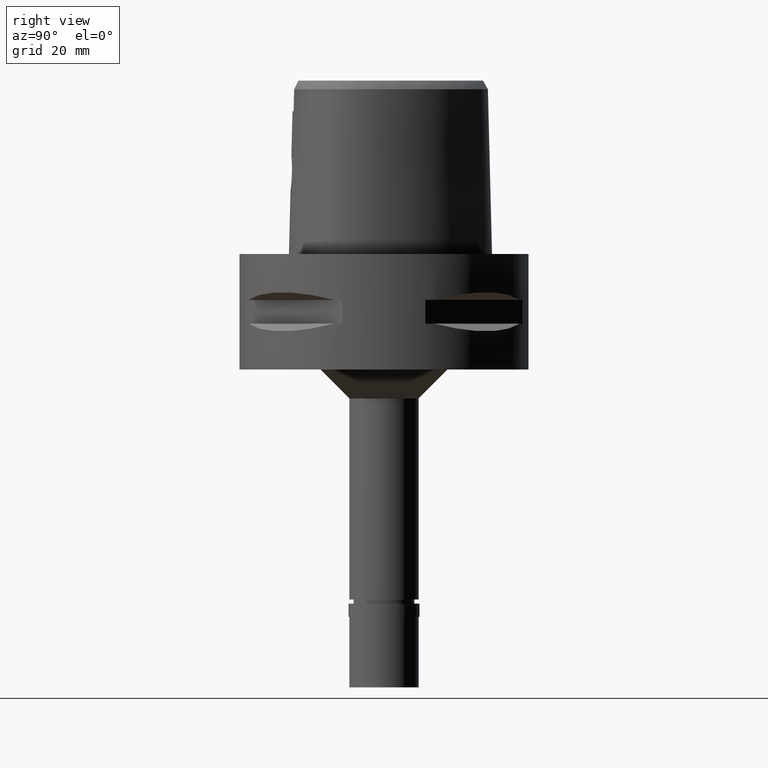
[diagram: clean part render]
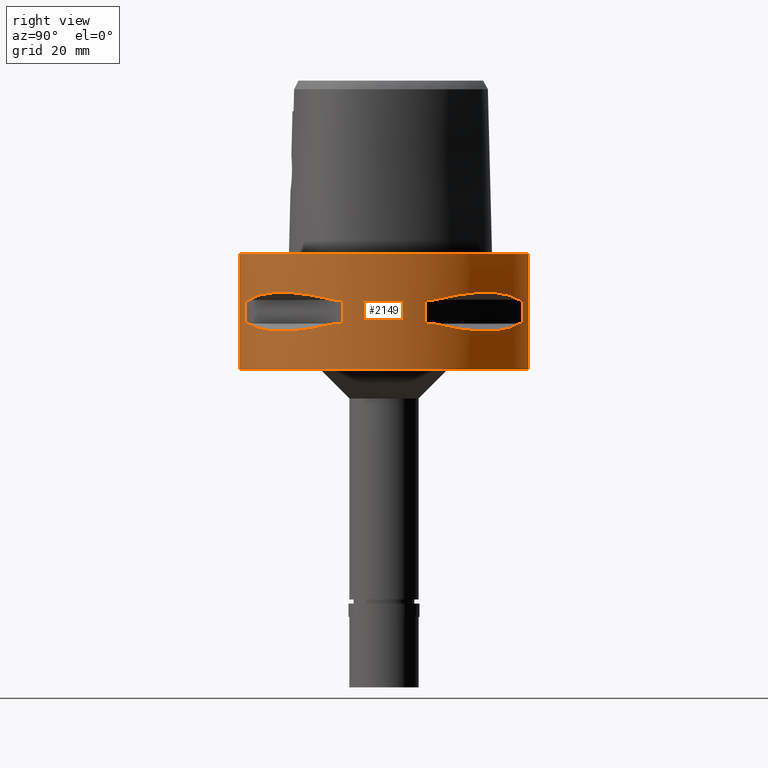
[diagram: same view with one face highlighted and labeled with its STEP entity id]
A machine part, right view. The second image highlights one B-rep face of the part: STEP entity #2149.
In plain terms, the highlighted cylindrical surface (partial cylindrical patch) has radius 25 mm, axis along (0, 0, -1).
Its self-contained STEP definition (entity closure, byte-faithful):
#27 = LINE ( 'NONE', #1923, #787 ) ;
#31 = CARTESIAN_POINT ( 'NONE',  ( 21.82791133048241505, -12.20403021318713144, -7.162775698611254960 ) ) ;
#37 = CARTESIAN_POINT ( 'NONE',  ( 20.88268233906169868, 13.74471461761818247, -6.919682044202299487 ) ) ;
#50 = DIRECTION ( 'NONE',  ( 0.0000000000000000000, 0.0000000000000000000, -1.000000000000000000 ) ) ;
#167 = CIRCLE ( 'NONE', #415, 25.00000000000001066 ) ;
#174 = FACE_OUTER_BOUND ( 'NONE', #231, .T. ) ;
#180 = CARTESIAN_POINT ( 'NONE',  ( 0.0000000000000000000, -25.00000000000000000, 0.0000000000000000000 ) ) ;
#208 = VERTEX_POINT ( 'NONE', #883 ) ;
#221 = EDGE_CURVE ( 'NONE', #4669, #3877, #1612, .T. ) ;
#231 = EDGE_LOOP ( 'NONE', ( #3900, #3501, #3631, #2078 ) ) ;
#247 = EDGE_CURVE ( 'NONE', #4529, #262, #4227, .T. ) ;
#262 = VERTEX_POINT ( 'NONE', #857 ) ;
#272 = CARTESIAN_POINT ( 'NONE',  ( 16.07509500019389392, 19.18226349638523942, -13.33749867751852136 ) ) ;
#275 = DIRECTION ( 'NONE',  ( 0.0000000000000000000, 0.0000000000000000000, 1.000000000000000000 ) ) ;
#289 = CARTESIAN_POINT ( 'NONE',  ( 13.24197703503762646, 21.20561591939662804, -6.993086720737648143 ) ) ;
#345 = DIRECTION ( 'NONE',  ( 0.0000000000000000000, 0.0000000000000000000, 1.000000000000000000 ) ) ;
#363 = AXIS2_PLACEMENT_3D ( 'NONE', #2672, #4162, #1536 ) ;
#380 = CARTESIAN_POINT ( 'NONE',  ( 21.41803043592396705, -12.89853354822411902, -7.046579073858217690 ) ) ;
#396 = CARTESIAN_POINT ( 'NONE',  ( 16.43106916202611956, -18.92421359264642078, -13.37747608848010117 ) ) ;
#400 = CARTESIAN_POINT ( 'NONE',  ( 18.92421359264222502, -16.43106916203382539, -6.622523911517402162 ) ) ;
#415 = AXIS2_PLACEMENT_3D ( 'NONE', #2678, #4170, #1198 ) ;
#425 = CARTESIAN_POINT ( 'NONE',  ( 10.78455809743770466, -22.58788056562618962, -12.56798337782440989 ) ) ;
#451 = CARTESIAN_POINT ( 'NONE',  ( 21.01958685664148874, -13.53433973752551367, -6.949676194097938797 ) ) ;
#518 = DIRECTION ( 'NONE',  ( 0.0000000000000000000, 0.0000000000000000000, -1.000000000000000000 ) ) ;
#594 = EDGE_CURVE ( 'NONE', #1515, #3992, #4066, .T. ) ;
#647 = VERTEX_POINT ( 'NONE', #2501 ) ;
#654 = CARTESIAN_POINT ( 'NONE',  ( 20.77616787493488815, 13.90573822668292259, -6.897428778966740559 ) ) ;
#662 = CARTESIAN_POINT ( 'NONE',  ( 22.58788056562460866, 10.78455809744206384, -12.56798337782554498 ) ) ;
#708 = CARTESIAN_POINT ( 'NONE',  ( 21.01958685664117610, 13.53433973752414055, -13.05032380590030350 ) ) ;
#733 = CARTESIAN_POINT ( 'NONE',  ( 12.89853354821194920, -21.41803043592740607, -12.95342092613715934 ) ) ;
#759 = CARTESIAN_POINT ( 'NONE',  ( 8.646484890751999330, -23.45715880140000209, -7.949999999998999201 ) ) ;
#766 = CARTESIAN_POINT ( 'NONE',  ( 20.92801700160346456, 13.67544437571269711, -6.929453703558801969 ) ) ;
#780 = CARTESIAN_POINT ( 'NONE',  ( 13.62920640916783732, -20.95817024473975110, -6.936020264392929846 ) ) ;
#787 = VECTOR ( 'NONE', #50, 1000.000000000000000 ) ;
#789 = CARTESIAN_POINT ( 'NONE',  ( 13.55971422200898857, 21.00321793043672614, -6.945999690325987075 ) ) ;
#802 = CARTESIAN_POINT ( 'NONE',  ( 13.55971422200900989, -21.00321793043558216, -13.05400030967249414 ) ) ;
#824 = EDGE_CURVE ( 'NONE', #4745, #2304, #2738, .T. ) ;
#841 = ORIENTED_EDGE ( 'NONE', *, *, #3857, .F. ) ;
#849 = FACE_BOUND ( 'NONE', #1438, .T. ) ;
#857 = CARTESIAN_POINT ( 'NONE',  ( 0.0000000000000000000, -25.00000000000000000, -20.00000000000000000 ) ) ;
#883 = CARTESIAN_POINT ( 'NONE',  ( 8.646484890751999330, -23.45715880140000209, -7.949999999998999201 ) ) ;
#923 = ORIENTED_EDGE ( 'NONE', *, *, #1538, .T. ) ;
#983 = CARTESIAN_POINT ( 'NONE',  ( 14.85488513039238434, 20.11654071401936861, -13.22076716108337813 ) ) ;
#994 = CARTESIAN_POINT ( 'NONE',  ( 0.0000000000000000000, 1.268121760516999976E-14, -7.950000000000000178 ) ) ;
#1004 = CARTESIAN_POINT ( 'NONE',  ( 17.05439749817818651, 18.30096971347848367, -13.37751056789948656 ) ) ;
#1008 = CARTESIAN_POINT ( 'NONE',  ( 7.159921374231999813, 23.95277699797999915, -7.950000000000000178 ) ) ;
#1018 = CARTESIAN_POINT ( 'NONE',  ( 9.515641234307512519, 23.13678124604903630, -7.725961997871155340 ) ) ;
#1049 = CARTESIAN_POINT ( 'NONE',  ( 20.56020460723054910, 14.22535762328679709, -6.855111341547393877 ) ) ;
#1056 = CARTESIAN_POINT ( 'NONE',  ( 13.62920640916741633, 20.95817024473907253, -13.06397973560555315 ) ) ;
#1063 = CIRCLE ( 'NONE', #1215, 25.00000000000000000 ) ;
#1070 = ORIENTED_EDGE ( 'NONE', *, *, #2059, .T. ) ;
#1082 = CARTESIAN_POINT ( 'NONE',  ( 18.92421359263839520, 16.43106916203781154, -13.37747608848159508 ) ) ;
#1106 = CARTESIAN_POINT ( 'NONE',  ( 0.0000000000000000000, 1.268121760516999976E-14, -12.05000000000000071 ) ) ;
#1113 = CARTESIAN_POINT ( 'NONE',  ( 0.0000000000000000000, 1.268121760516999976E-14, -7.950000000000000178 ) ) ;
#1135 = CARTESIAN_POINT ( 'NONE',  ( 13.90573822668217829, -20.77616787493579409, -6.897428778966670393 ) ) ;
#1142 = AXIS2_PLACEMENT_3D ( 'NONE', #3714, #2886, #4370 ) ;
#1153 = CARTESIAN_POINT ( 'NONE',  ( 20.92801700160366707, -13.67544437571170235, -13.07054629643980626 ) ) ;
#1157 = CARTESIAN_POINT ( 'NONE',  ( 13.67544437571247684, -20.92801700160373102, -6.929453703558782429 ) ) ;
#1161 = CARTESIAN_POINT ( 'NONE',  ( 7.159921374235000080, -23.95277699797999915, -7.950000000000000178 ) ) ;
#1171 = CARTESIAN_POINT ( 'NONE',  ( 9.515641234289544670, -23.13678124605509012, -12.27403800212291785 ) ) ;
#1198 = DIRECTION ( 'NONE',  ( 0.3458593956303108730, -0.9382863520558295534, 0.0000000000000000000 ) ) ;
#1215 = AXIS2_PLACEMENT_3D ( 'NONE', #4410, #345, #4461 ) ;
#1238 = ORIENTED_EDGE ( 'NONE', *, *, #221, .T. ) ;
#1248 = B_SPLINE_CURVE_WITH_KNOTS ( 'NONE', 3,
 ( #1858, #2224, #2620, #31, #380, #3415, #2661, #2975, #451, #1474, #1950, #400, #3368, #3001, #3713, #3437, #1135, #3803, #1157, #780, #4539, #2267, #2686, #759 ),
 .UNSPECIFIED., .F., .F.,
 ( 4, 1, 1, 1, 1, 1, 2, 2, 2, 1, 1, 1, 1, 1, 2, 2, 4 ),
 ( 0.0000000000000000000, 0.1249999999999883982, 0.1874999999999826805, 0.2187499999999798217, 0.2343749999999785172, 0.2421874999999778788, 0.2460937499999775457, 0.2499999999999771849, 0.4999999999999770184, 0.6249999999999770184, 0.6874999999999772404, 0.7187499999999774625, 0.7343749999999775735, 0.7421874999999779066, 0.7460937499999780176, 0.7499999999999782396, 1.000000000000000000 ),
 .UNSPECIFIED. ) ;
#1307 = EDGE_CURVE ( 'NONE', #4669, #208, #1248, .T. ) ;
#1351 = CARTESIAN_POINT ( 'NONE',  ( 21.09754014382194853, 13.41274673326295996, -13.03250796600590178 ) ) ;
#1360 = CARTESIAN_POINT ( 'NONE',  ( 7.159921374235000080, 23.95277699797999915, -12.05000000000000071 ) ) ;
#1401 = CARTESIAN_POINT ( 'NONE',  ( 13.90573822668258863, 20.77616787493456840, -13.10257122103192984 ) ) ;
#1416 = CARTESIAN_POINT ( 'NONE',  ( 13.48572973711289080, 21.05082155772233321, -6.956769630346443023 ) ) ;
#1438 = EDGE_LOOP ( 'NONE', ( #1238, #2541, #2893, #841, #3819, #3748, #2673, #2899 ) ) ;
#1440 = CARTESIAN_POINT ( 'NONE',  ( 19.18226349638437611, 16.07509500019318338, -6.662501322481056754 ) ) ;
#1474 = CARTESIAN_POINT ( 'NONE',  ( 21.00321793043662666, -13.55971422200908805, -6.945999690325981746 ) ) ;
#1476 = EDGE_CURVE ( 'NONE', #2067, #4529, #3493, .T. ) ;
#1491 = CARTESIAN_POINT ( 'NONE',  ( 7.159921374231999813, -23.95277699797999915, -12.05000000000000071 ) ) ;
#1515 = VERTEX_POINT ( 'NONE', #4421 ) ;
#1518 = CARTESIAN_POINT ( 'NONE',  ( 20.97251445226632427, -13.60713573003134513, -13.06082541677992914 ) ) ;
#1536 = DIRECTION ( 'NONE',  ( 0.3458593956303108730, 0.9382863520558295534, 0.0000000000000000000 ) ) ;
#1538 = EDGE_CURVE ( 'NONE', #647, #3992, #4739, .T. ) ;
#1553 = DIRECTION ( 'NONE',  ( 0.0000000000000000000, 0.0000000000000000000, -1.000000000000000000 ) ) ;
#1566 = CARTESIAN_POINT ( 'NONE',  ( 20.95817024473942780, -13.62920640916716764, -13.06397973560559400 ) ) ;
#1609 = AXIS2_PLACEMENT_3D ( 'NONE', #1113, #275, #4737 ) ;
#1612 = CIRCLE ( 'NONE', #2403, 25.00000000000001066 ) ;
#1627 = CARTESIAN_POINT ( 'NONE',  ( 7.159921374231999813, -23.95277699797999915, -7.950000000000000178 ) ) ;
#1646 = CARTESIAN_POINT ( 'NONE',  ( 0.0000000000000000000, 1.268121760516999976E-14, -12.05000000000000071 ) ) ;
#1690 = VERTEX_POINT ( 'NONE', #2459 ) ;
#1713 = DIRECTION ( 'NONE',  ( 0.0000000000000000000, 0.0000000000000000000, 1.000000000000000000 ) ) ;
#1765 = EDGE_CURVE ( 'NONE', #4438, #3877, #2257, .T. ) ;
#1776 = CARTESIAN_POINT ( 'NONE',  ( 23.95277699797999915, 7.159921374231999813, -12.05000000000000071 ) ) ;
#1795 = CARTESIAN_POINT ( 'NONE',  ( 13.53433973752568242, 21.01958685664143900, -6.949676194097897941 ) ) ;
#1804 = DIRECTION ( 'NONE',  ( 0.2863968549694120291, 0.9581110799190402094, 0.0000000000000000000 ) ) ;
#1830 = CARTESIAN_POINT ( 'NONE',  ( 13.60713573003096499, 20.97251445226646993, -13.06082541677983500 ) ) ;
#1854 = CARTESIAN_POINT ( 'NONE',  ( 20.56020460723497578, -14.22535762328361031, -13.14488865845204302 ) ) ;
#1858 = CARTESIAN_POINT ( 'NONE',  ( 23.45715880140000209, -8.646484890751999330, -7.949999999998999201 ) ) ;
#1867 = DIRECTION ( 'NONE',  ( 0.0000000000000000000, 0.0000000000000000000, 1.000000000000000000 ) ) ;
#1893 = CARTESIAN_POINT ( 'NONE',  ( 19.18226349639547834, -16.07509500018687021, -13.33749867751983409 ) ) ;
#1923 = CARTESIAN_POINT ( 'NONE',  ( 23.95277699797999915, 7.159921374231999813, -7.950000000000000178 ) ) ;
#1938 = EDGE_CURVE ( 'NONE', #262, #4801, #1063, .T. ) ;
#1943 = ORIENTED_EDGE ( 'NONE', *, *, #3545, .F. ) ;
#1950 = CARTESIAN_POINT ( 'NONE',  ( 20.02826730454175674, -15.06560254767095408, -6.729245282053266664 ) ) ;
#1980 = AXIS2_PLACEMENT_3D ( 'NONE', #1106, #3729, #4081 ) ;
#2001 = DIRECTION ( 'NONE',  ( 0.0000000000000000000, 0.0000000000000000000, -1.000000000000000000 ) ) ;
#2036 = DIRECTION ( 'NONE',  ( 0.0000000000000000000, -1.000000000000000000, 0.0000000000000000000 ) ) ;
#2047 = AXIS2_PLACEMENT_3D ( 'NONE', #1646, #3140, #1804 ) ;
#2059 = EDGE_CURVE ( 'NONE', #1515, #3999, #2480, .T. ) ;
#2067 = VERTEX_POINT ( 'NONE', #3169 ) ;
#2078 = ORIENTED_EDGE ( 'NONE', *, *, #4065, .F. ) ;
#2149 = ADVANCED_FACE ( 'NONE', ( #174, #4289, #849 ), #4631, .T. ) ;
#2183 = CARTESIAN_POINT ( 'NONE',  ( 20.97251445226708100, 13.60713573003144994, -6.939174583218650660 ) ) ;
#2224 = CARTESIAN_POINT ( 'NONE',  ( 23.13678124605001685, -9.515641234304865748, -7.725961997871840126 ) ) ;
#2241 = CARTESIAN_POINT ( 'NONE',  ( 13.24197703502974655, -21.20561591939858914, -13.00691327925887819 ) ) ;
#2255 = LINE ( 'NONE', #4072, #3938 ) ;
#2257 = LINE ( 'NONE', #4486, #4124 ) ;
#2263 = CARTESIAN_POINT ( 'NONE',  ( 12.20403021316672287, -21.82791133048873533, -12.83722430138193715 ) ) ;
#2267 = CARTESIAN_POINT ( 'NONE',  ( 12.03062603423200727, -21.99328990739649825, -7.166052136924455418 ) ) ;
#2298 = CARTESIAN_POINT ( 'NONE',  ( 16.43106916203827694, 18.92421359263860836, -6.622523911517067319 ) ) ;
#2304 = VERTEX_POINT ( 'NONE', #1491 ) ;
#2337 = CARTESIAN_POINT ( 'NONE',  ( 0.0000000000000000000, 1.268121760516999976E-14, 3.550000000000000266 ) ) ;
#2381 = EDGE_CURVE ( 'NONE', #4438, #4341, #3391, .T. ) ;
#2396 = DIRECTION ( 'NONE',  ( 0.9382863520558295534, -0.3458593956303108730, 0.0000000000000000000 ) ) ;
#2403 = AXIS2_PLACEMENT_3D ( 'NONE', #4253, #3122, #2396 ) ;
#2459 = CARTESIAN_POINT ( 'NONE',  ( 23.45715880140000209, 8.646484890756999775, -12.05000000000000071 ) ) ;
#2480 = CIRCLE ( 'NONE', #363, 25.00000000000001066 ) ;
#2486 = CARTESIAN_POINT ( 'NONE',  ( 23.45715880140000209, -8.646484890751999330, -12.05000000000000071 ) ) ;
#2491 = CARTESIAN_POINT ( 'NONE',  ( 20.02826730456071758, 15.06560254765155271, -13.27075471794548456 ) ) ;
#2501 = CARTESIAN_POINT ( 'NONE',  ( 23.95277699797999915, 7.159921374235000080, -7.950000000000000178 ) ) ;
#2519 = CIRCLE ( 'NONE', #3379, 24.99999999999999645 ) ;
#2526 = CARTESIAN_POINT ( 'NONE',  ( 8.646484890751999330, 23.45715880140000209, -7.949999999998999201 ) ) ;
#2541 = ORIENTED_EDGE ( 'NONE', *, *, #1765, .F. ) ;
#2567 = CARTESIAN_POINT ( 'NONE',  ( 0.0000000000000000000, 25.00000000000000000, 0.0000000000000000000 ) ) ;
#2580 = CARTESIAN_POINT ( 'NONE',  ( 22.81626994451410084, 10.38516041958663472, -7.501830467881378972 ) ) ;
#2589 = CARTESIAN_POINT ( 'NONE',  ( 14.22535762328668163, 20.56020460723048515, -13.14488865845147281 ) ) ;
#2620 = CARTESIAN_POINT ( 'NONE',  ( 22.58788056561743574, -10.78455809746458804, -7.432016622167130215 ) ) ;
#2627 = EDGE_CURVE ( 'NONE', #4745, #208, #2519, .T. ) ;
#2658 = CARTESIAN_POINT ( 'NONE',  ( 23.45715880140000209, -8.646484890751999330, -12.05000000000000071 ) ) ;
#2661 = CARTESIAN_POINT ( 'NONE',  ( 21.09754014382162168, -13.41274673326623379, -6.967492033991838696 ) ) ;
#2672 = CARTESIAN_POINT ( 'NONE',  ( 0.0000000000000000000, 1.268121760516999976E-14, -7.950000000000000178 ) ) ;
#2673 = ORIENTED_EDGE ( 'NONE', *, *, #2627, .T. ) ;
#2678 = CARTESIAN_POINT ( 'NONE',  ( 0.0000000000000000000, 1.268121760516999976E-14, -12.05000000000000071 ) ) ;
#2686 = CARTESIAN_POINT ( 'NONE',  ( 10.38516041957875657, -22.81626994451702473, -7.501830467883408460 ) ) ;
#2704 = CARTESIAN_POINT ( 'NONE',  ( 23.95277699797999915, -7.159921374231999813, -7.950000000000000178 ) ) ;
#2736 = DIRECTION ( 'NONE',  ( 0.9382863520558295534, 0.3458593956303108730, 0.0000000000000000000 ) ) ;
#2738 = LINE ( 'NONE', #1627, #3966 ) ;
#2760 = CARTESIAN_POINT ( 'NONE',  ( 0.0000000000000000000, 1.268121760516999976E-14, -12.05000000000000071 ) ) ;
#2807 = CARTESIAN_POINT ( 'NONE',  ( 23.45715880140000209, 8.646484890751999330, -7.949999999998999201 ) ) ;
#2843 = VERTEX_POINT ( 'NONE', #2941 ) ;
#2886 = DIRECTION ( 'NONE',  ( 0.0000000000000000000, 0.0000000000000000000, -1.000000000000000000 ) ) ;
#2893 = ORIENTED_EDGE ( 'NONE', *, *, #2381, .T. ) ;
#2895 = CARTESIAN_POINT ( 'NONE',  ( 23.45715880140000209, 8.646484890751999330, -7.949999999998999201 ) ) ;
#2899 = ORIENTED_EDGE ( 'NONE', *, *, #1307, .F. ) ;
#2903 = CARTESIAN_POINT ( 'NONE',  ( 8.646484890751999330, 23.45715880140000209, -12.05000000000000071 ) ) ;
#2918 = CARTESIAN_POINT ( 'NONE',  ( 15.06560254767727969, 20.02826730453625359, -6.729245282052932708 ) ) ;
#2929 = CARTESIAN_POINT ( 'NONE',  ( 23.13678124605418773, 9.515641234292031569, -12.27403800212356266 ) ) ;
#2941 = CARTESIAN_POINT ( 'NONE',  ( 8.646484890751999330, 23.45715880140000209, -12.05000000000000071 ) ) ;
#2951 = CARTESIAN_POINT ( 'NONE',  ( 21.05082155772240426, 13.48572973711041811, -13.04323036965151772 ) ) ;
#2971 = CARTESIAN_POINT ( 'NONE',  ( 21.99328990740340117, -12.03062603420926990, -12.83394786306801905 ) ) ;
#2973 = LINE ( 'NONE', #2567, #3148 ) ;
#2975 = CARTESIAN_POINT ( 'NONE',  ( 21.05082155772245756, -13.48572973711255862, -6.956769630346525624 ) ) ;
#3001 = CARTESIAN_POINT ( 'NONE',  ( 16.07509500019000726, -19.18226349638826278, -6.662501322480766319 ) ) ;
#3117 = CARTESIAN_POINT ( 'NONE',  ( 0.0000000000000000000, 25.00000000000000000, -20.00000000000000000 ) ) ;
#3122 = DIRECTION ( 'NONE',  ( 0.0000000000000000000, 0.0000000000000000000, 1.000000000000000000 ) ) ;
#3140 = DIRECTION ( 'NONE',  ( 0.0000000000000000000, 0.0000000000000000000, -1.000000000000000000 ) ) ;
#3148 = VECTOR ( 'NONE', #3321, 1000.000000000000000 ) ;
#3152 = AXIS2_PLACEMENT_3D ( 'NONE', #2760, #1553, #2736 ) ;
#3169 = CARTESIAN_POINT ( 'NONE',  ( 0.0000000000000000000, 25.00000000000000000, 0.0000000000000000000 ) ) ;
#3219 = CARTESIAN_POINT ( 'NONE',  ( 21.00321793043573493, 13.55971422200878784, -13.05400030967246749 ) ) ;
#3259 = CARTESIAN_POINT ( 'NONE',  ( 21.99328990739357792, 12.03062603423988897, -7.166052136922427707 ) ) ;
#3267 = CARTESIAN_POINT ( 'NONE',  ( 21.82791133048755583, 12.20403021316999848, -12.83722430138279336 ) ) ;
#3291 = CARTESIAN_POINT ( 'NONE',  ( 13.67544437571218907, 20.92801700160294587, -13.07054629643971566 ) ) ;
#3304 = CIRCLE ( 'NONE', #2047, 24.99999999999999645 ) ;
#3321 = DIRECTION ( 'NONE',  ( 0.0000000000000000000, 0.0000000000000000000, -1.000000000000000000 ) ) ;
#3342 = CARTESIAN_POINT ( 'NONE',  ( 20.77616787493696293, -13.90573822668094195, -13.10257122103223359 ) ) ;
#3368 = CARTESIAN_POINT ( 'NONE',  ( 17.05439749817575645, -18.30096971348001134, -6.622489432099812667 ) ) ;
#3375 = B_SPLINE_CURVE_WITH_KNOTS ( 'NONE', 3,
 ( #4417, #2929, #662, #3267, #3636, #4757, #1351, #2951, #708, #3219, #2491, #1082, #1004, #272, #983, #2589, #1401, #4082, #3291, #1056, #1830, #4388, #4807, #2903 ),
 .UNSPECIFIED., .F., .F.,
 ( 4, 1, 1, 1, 1, 1, 2, 2, 2, 1, 1, 1, 1, 1, 2, 2, 4 ),
 ( 0.0000000000000000000, 0.1249999999999942268, 0.1874999999999913125, 0.2187499999999896472, 0.2343749999999885925, 0.2421874999999881484, 0.2460937499999879263, 0.2499999999999876765, 0.4999999999999883427, 0.6249999999999884537, 0.6874999999999882316, 0.7187499999999881206, 0.7343749999999882316, 0.7421874999999883427, 0.7460937499999885647, 0.7499999999999886757, 1.000000000000000000 ),
 .UNSPECIFIED. ) ;
#3379 = AXIS2_PLACEMENT_3D ( 'NONE', #994, #1713, #4378 ) ;
#3391 = CIRCLE ( 'NONE', #1980, 24.99999999999999645 ) ;
#3410 = CARTESIAN_POINT ( 'NONE',  ( 13.41274673326243061, -21.09754014382214038, -13.03250796600576500 ) ) ;
#3415 = CARTESIAN_POINT ( 'NONE',  ( 21.20561591939702240, -13.24197703503653756, -6.993086720737925255 ) ) ;
#3424 = CARTESIAN_POINT ( 'NONE',  ( 20.11654071401899557, 14.85488513039212677, -6.779232838915810966 ) ) ;
#3432 = CARTESIAN_POINT ( 'NONE',  ( 20.11654071402705313, -14.85488513038712277, -13.22076716108435868 ) ) ;
#3437 = CARTESIAN_POINT ( 'NONE',  ( 14.22535762328540976, -20.56020460723225796, -6.855111341547268644 ) ) ;
#3493 = CIRCLE ( 'NONE', #1142, 25.00000000000000000 ) ;
#3501 = ORIENTED_EDGE ( 'NONE', *, *, #247, .T. ) ;
#3518 = EDGE_CURVE ( 'NONE', #4735, #2843, #3304, .T. ) ;
#3545 = EDGE_CURVE ( 'NONE', #1690, #2843, #3375, .T. ) ;
#3548 = B_SPLINE_CURVE_WITH_KNOTS ( 'NONE', 3,
 ( #4126, #1171, #425, #2263, #733, #2241, #3410, #4513, #3751, #802, #3822, #396, #3731, #1893, #3432, #1854, #3342, #4833, #1153, #1566, #1518, #2971, #3798, #2658 ),
 .UNSPECIFIED., .F., .F.,
 ( 4, 1, 1, 1, 1, 1, 2, 2, 2, 1, 1, 1, 1, 1, 2, 2, 4 ),
 ( 0.0000000000000000000, 0.1250000000000007216, 0.1875000000000010547, 0.2187500000000012212, 0.2343750000000013323, 0.2421875000000014433, 0.2460937500000015266, 0.2500000000000016098, 0.5000000000000024425, 0.6250000000000027756, 0.6875000000000028866, 0.7187500000000027756, 0.7343750000000025535, 0.7421875000000026645, 0.7460937500000026645, 0.7500000000000026645, 1.000000000000000000 ),
 .UNSPECIFIED. ) ;
#3550 = ORIENTED_EDGE ( 'NONE', *, *, #4835, .T. ) ;
#3558 = ORIENTED_EDGE ( 'NONE', *, *, #4562, .F. ) ;
#3624 = AXIS2_PLACEMENT_3D ( 'NONE', #2337, #518, #2036 ) ;
#3631 = ORIENTED_EDGE ( 'NONE', *, *, #1938, .T. ) ;
#3636 = CARTESIAN_POINT ( 'NONE',  ( 21.41803043592671330, 12.89853354821386233, -12.95342092613765139 ) ) ;
#3713 = CARTESIAN_POINT ( 'NONE',  ( 14.85488513038975711, -20.11654071402191590, -6.779232838915590698 ) ) ;
#3714 = CARTESIAN_POINT ( 'NONE',  ( 0.0000000000000000000, 1.268121760516999976E-14, 0.0000000000000000000 ) ) ;
#3720 = CARTESIAN_POINT ( 'NONE',  ( 0.0000000000000000000, -25.00000000000000000, 0.0000000000000000000 ) ) ;
#3725 = VERTEX_POINT ( 'NONE', #1776 ) ;
#3729 = DIRECTION ( 'NONE',  ( 0.0000000000000000000, 0.0000000000000000000, -1.000000000000000000 ) ) ;
#3731 = CARTESIAN_POINT ( 'NONE',  ( 18.30096971348432788, -17.05439749817416484, -13.37751056790023263 ) ) ;
#3748 = ORIENTED_EDGE ( 'NONE', *, *, #824, .F. ) ;
#3751 = CARTESIAN_POINT ( 'NONE',  ( 13.53433973752398778, -21.01958685664124005, -13.05032380590026797 ) ) ;
#3798 = CARTESIAN_POINT ( 'NONE',  ( 22.81626994452413726, -10.38516041955622526, -12.49816953210923387 ) ) ;
#3803 = CARTESIAN_POINT ( 'NONE',  ( 13.74471461761779878, -20.88268233906216764, -6.919682044202262183 ) ) ;
#3806 = VECTOR ( 'NONE', #2001, 1000.000000000000000 ) ;
#3819 = ORIENTED_EDGE ( 'NONE', *, *, #3874, .T. ) ;
#3822 = CARTESIAN_POINT ( 'NONE',  ( 15.06560254763741824, -20.02826730457115545, -13.27075471794397998 ) ) ;
#3857 = EDGE_CURVE ( 'NONE', #4070, #4341, #3548, .T. ) ;
#3872 = EDGE_CURVE ( 'NONE', #647, #3725, #27, .T. ) ;
#3874 = EDGE_CURVE ( 'NONE', #4070, #2304, #167, .T. ) ;
#3877 = VERTEX_POINT ( 'NONE', #2704 ) ;
#3900 = ORIENTED_EDGE ( 'NONE', *, *, #1476, .T. ) ;
#3938 = VECTOR ( 'NONE', #1867, 1000.000000000000000 ) ;
#3966 = VECTOR ( 'NONE', #4275, 1000.000000000000000 ) ;
#3992 = VERTEX_POINT ( 'NONE', #2807 ) ;
#3995 = CARTESIAN_POINT ( 'NONE',  ( 18.30096971347780510, 17.05439749817756123, -6.622489432099984086 ) ) ;
#3999 = VERTEX_POINT ( 'NONE', #1008 ) ;
#4008 = CARTESIAN_POINT ( 'NONE',  ( 8.646484890756999775, -23.45715880140000209, -12.05000000000000071 ) ) ;
#4023 = CARTESIAN_POINT ( 'NONE',  ( 12.89853354822614229, 21.41803043592322098, -7.046579073857695441 ) ) ;
#4065 = EDGE_CURVE ( 'NONE', #2067, #4801, #2973, .T. ) ;
#4066 = B_SPLINE_CURVE_WITH_KNOTS ( 'NONE', 3,
 ( #2526, #1018, #4138, #4524, #4023, #289, #4774, #1416, #1795, #789, #2918, #2298, #3995, #1440, #3424, #1049, #654, #37, #766, #4408, #2183, #3259, #2580, #2895 ),
 .UNSPECIFIED., .F., .F.,
 ( 4, 1, 1, 1, 1, 1, 2, 2, 2, 1, 1, 1, 1, 1, 2, 2, 4 ),
 ( 0.0000000000000000000, 0.1250000000000008604, 0.1875000000000011657, 0.2187500000000013323, 0.2343750000000013045, 0.2421875000000013045, 0.2460937500000014155, 0.2500000000000014988, 0.4999999999999964473, 0.6249999999999943379, 0.6874999999999934497, 0.7187499999999930056, 0.7343749999999927836, 0.7421874999999925615, 0.7460937499999925615, 0.7499999999999925615, 1.000000000000000000 ),
 .UNSPECIFIED. ) ;
#4070 = VERTEX_POINT ( 'NONE', #4008 ) ;
#4072 = CARTESIAN_POINT ( 'NONE',  ( 7.159921374231999813, 23.95277699797999915, -12.05000000000000071 ) ) ;
#4081 = DIRECTION ( 'NONE',  ( 0.9581110799190402094, -0.2863968549694120291, 0.0000000000000000000 ) ) ;
#4082 = CARTESIAN_POINT ( 'NONE',  ( 13.74471461761772950, 20.88268233906124038, -13.08031795579626611 ) ) ;
#4124 = VECTOR ( 'NONE', #4437, 1000.000000000000000 ) ;
#4126 = CARTESIAN_POINT ( 'NONE',  ( 8.646484890756999775, -23.45715880140000209, -12.05000000000000071 ) ) ;
#4138 = CARTESIAN_POINT ( 'NONE',  ( 10.78455809746921723, 22.58788056561571977, -7.432016622165938280 ) ) ;
#4143 = ORIENTED_EDGE ( 'NONE', *, *, #3872, .F. ) ;
#4162 = DIRECTION ( 'NONE',  ( 0.0000000000000000000, 0.0000000000000000000, 1.000000000000000000 ) ) ;
#4170 = DIRECTION ( 'NONE',  ( 0.0000000000000000000, 0.0000000000000000000, -1.000000000000000000 ) ) ;
#4227 = LINE ( 'NONE', #180, #3806 ) ;
#4253 = CARTESIAN_POINT ( 'NONE',  ( 0.0000000000000000000, 1.268121760516999976E-14, -7.950000000000000178 ) ) ;
#4275 = DIRECTION ( 'NONE',  ( 0.0000000000000000000, 0.0000000000000000000, -1.000000000000000000 ) ) ;
#4289 = FACE_BOUND ( 'NONE', #4502, .T. ) ;
#4341 = VERTEX_POINT ( 'NONE', #2486 ) ;
#4370 = DIRECTION ( 'NONE',  ( 0.0000000000000000000, 1.000000000000000000, 0.0000000000000000000 ) ) ;
#4372 = CARTESIAN_POINT ( 'NONE',  ( 23.45715880140000209, -8.646484890751999330, -7.949999999998999201 ) ) ;
#4378 = DIRECTION ( 'NONE',  ( 0.2863968549694120291, -0.9581110799190402094, 0.0000000000000000000 ) ) ;
#4388 = CARTESIAN_POINT ( 'NONE',  ( 12.03062603423363619, 21.99328990739442347, -12.83394786307430024 ) ) ;
#4408 = CARTESIAN_POINT ( 'NONE',  ( 20.95817024473961965, 13.62920640916795278, -6.936020264392939616 ) ) ;
#4410 = CARTESIAN_POINT ( 'NONE',  ( 0.0000000000000000000, 1.268121760516999976E-14, -20.00000000000000000 ) ) ;
#4417 = CARTESIAN_POINT ( 'NONE',  ( 23.45715880140000209, 8.646484890756999775, -12.05000000000000071 ) ) ;
#4421 = CARTESIAN_POINT ( 'NONE',  ( 8.646484890751999330, 23.45715880140000209, -7.949999999998999201 ) ) ;
#4437 = DIRECTION ( 'NONE',  ( 0.0000000000000000000, 0.0000000000000000000, 1.000000000000000000 ) ) ;
#4438 = VERTEX_POINT ( 'NONE', #4698 ) ;
#4461 = DIRECTION ( 'NONE',  ( 0.0000000000000000000, -1.000000000000000000, 0.0000000000000000000 ) ) ;
#4462 = ORIENTED_EDGE ( 'NONE', *, *, #594, .F. ) ;
#4486 = CARTESIAN_POINT ( 'NONE',  ( 23.95277699797999915, -7.159921374231999813, -12.05000000000000071 ) ) ;
#4502 = EDGE_LOOP ( 'NONE', ( #1070, #3558, #4772, #1943, #3550, #4143, #923, #4462 ) ) ;
#4513 = CARTESIAN_POINT ( 'NONE',  ( 13.48572973711011791, -21.05082155772252506, -13.04323036965143601 ) ) ;
#4524 = CARTESIAN_POINT ( 'NONE',  ( 12.20403021319060954, 21.82791133048111476, -7.162775698610357900 ) ) ;
#4529 = VERTEX_POINT ( 'NONE', #3720 ) ;
#4539 = CARTESIAN_POINT ( 'NONE',  ( 13.60713573003156718, -20.97251445226703481, -6.939174583218617798 ) ) ;
#4562 = EDGE_CURVE ( 'NONE', #4735, #3999, #2255, .T. ) ;
#4631 = CYLINDRICAL_SURFACE ( 'NONE', #3624, 25.00000000000000000 ) ;
#4633 = CIRCLE ( 'NONE', #3152, 25.00000000000001066 ) ;
#4669 = VERTEX_POINT ( 'NONE', #4372 ) ;
#4698 = CARTESIAN_POINT ( 'NONE',  ( 23.95277699797999915, -7.159921374235000080, -12.05000000000000071 ) ) ;
#4735 = VERTEX_POINT ( 'NONE', #1360 ) ;
#4737 = DIRECTION ( 'NONE',  ( 0.9581110799190402094, 0.2863968549694120291, 0.0000000000000000000 ) ) ;
#4739 = CIRCLE ( 'NONE', #1609, 24.99999999999999645 ) ;
#4745 = VERTEX_POINT ( 'NONE', #1161 ) ;
#4757 = CARTESIAN_POINT ( 'NONE',  ( 21.20561591939821611, 13.24197703503076973, -13.00691327925914287 ) ) ;
#4772 = ORIENTED_EDGE ( 'NONE', *, *, #3518, .T. ) ;
#4774 = CARTESIAN_POINT ( 'NONE',  ( 13.41274673326679334, 21.09754014382140852, -6.967492033991692146 ) ) ;
#4801 = VERTEX_POINT ( 'NONE', #3117 ) ;
#4807 = CARTESIAN_POINT ( 'NONE',  ( 10.38516041958058977, 22.81626994451515955, -12.49816953211551152 ) ) ;
#4833 = CARTESIAN_POINT ( 'NONE',  ( 20.88268233906247318, -13.74471461761688040, -13.08031795579642420 ) ) ;
#4835 = EDGE_CURVE ( 'NONE', #1690, #3725, #4633, .T. ) ;